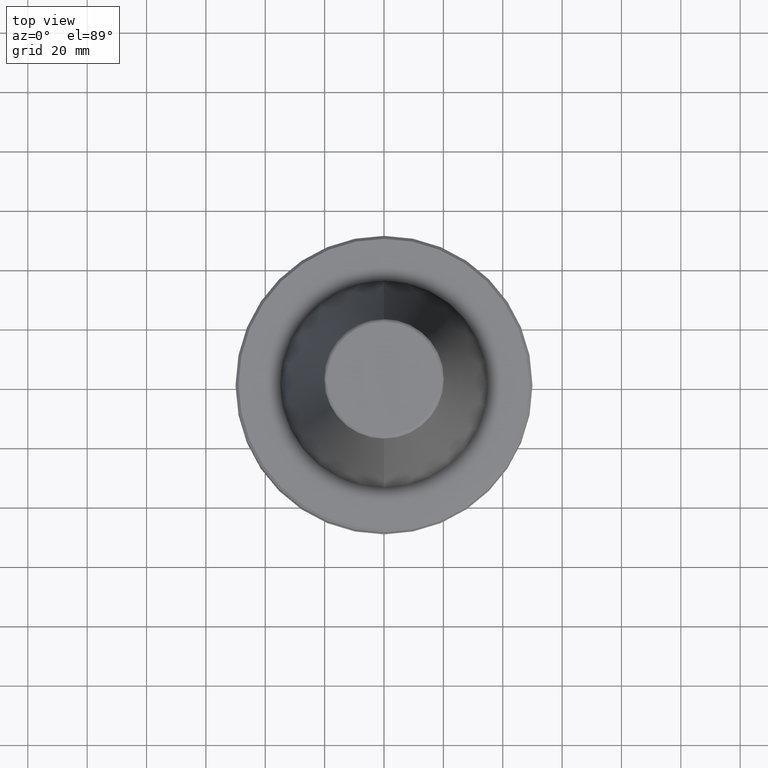
[diagram: clean part render]
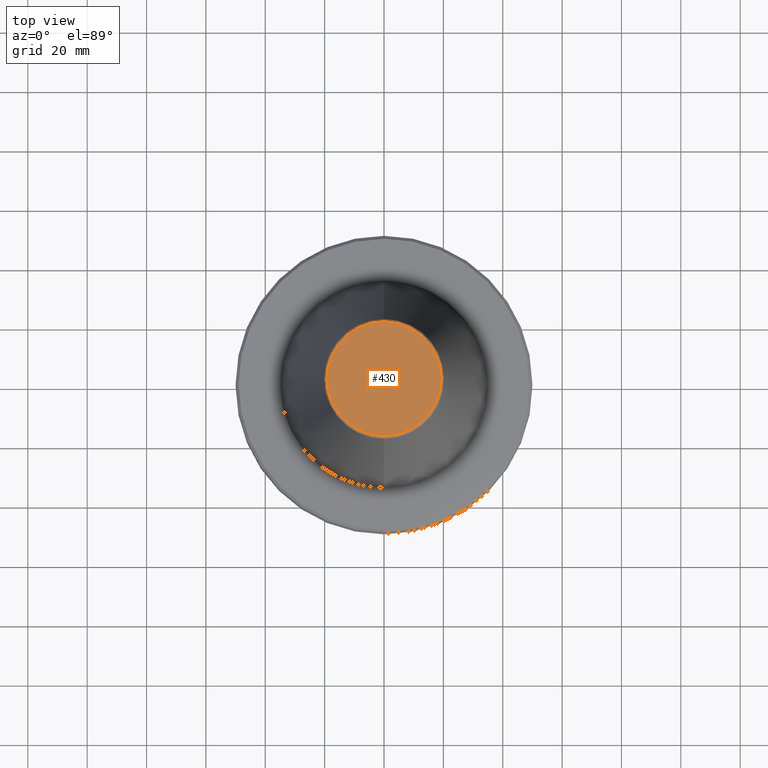
[diagram: same view with one face highlighted and labeled with its STEP entity id]
A machine part, top view. The second image highlights one B-rep face of the part: STEP entity #430.
In plain terms, the highlighted planar face has unit normal (0, 0, -1).
Its self-contained STEP definition (entity closure, byte-faithful):
#85 =( BOUNDED_CURVE ( )  B_SPLINE_CURVE ( 3, ( #365, #1256, #492, #542 ),
 .UNSPECIFIED., .F., .T. ) 
 B_SPLINE_CURVE_WITH_KNOTS ( ( 4, 4 ),
 ( 0.0000000000000000000, 1.000000000000000000 ),
 .UNSPECIFIED. ) 
 CURVE ( )  GEOMETRIC_REPRESENTATION_ITEM ( )  RATIONAL_B_SPLINE_CURVE ( ( 1.000000000000000000, 0.3333333333333333700, 0.3333333333333333700, 1.000000000000000000 ) ) 
 REPRESENTATION_ITEM ( '' )  );
#209 = FACE_OUTER_BOUND ( 'NONE', #510, .T. ) ;
#238 = CARTESIAN_POINT ( 'NONE',  ( -19.21428326503027900, -38.42856653006053600, 101.8000000000000000 ) ) ;
#295 = DIRECTION ( 'NONE',  ( -1.000000000000000000, 0.0000000000000000000, -0.0000000000000000000 ) ) ;
#354 = CARTESIAN_POINT ( 'NONE',  ( -19.21428326503027500, 2.377307613035567900E-015, 101.8000000000000000 ) ) ;
#365 = CARTESIAN_POINT ( 'NONE',  ( -19.21428326503027500, 2.377307613035567900E-015, 101.8000000000000000 ) ) ;
#391 = AXIS2_PLACEMENT_3D ( 'NONE', #418, #550, #295 ) ;
#418 = CARTESIAN_POINT ( 'NONE',  ( 0.0000000000000000000, 0.0000000000000000000, 101.8000000000000000 ) ) ;
#430 = ADVANCED_FACE ( 'NONE', ( #209 ), #950, .F. ) ;
#435 = CARTESIAN_POINT ( 'NONE',  ( 19.21428326503027500, 0.0000000000000000000, 101.8000000000000000 ) ) ;
#441 = VERTEX_POINT ( 'NONE', #435 ) ;
#453 = ORIENTED_EDGE ( 'NONE', *, *, #1365, .F. ) ;
#476 = EDGE_CURVE ( 'NONE', #963, #441, #85, .T. ) ;
#492 = CARTESIAN_POINT ( 'NONE',  ( 19.21428326503027500, 38.42856653006053600, 101.8000000000000000 ) ) ;
#510 = EDGE_LOOP ( 'NONE', ( #453, #1057 ) ) ;
#542 = CARTESIAN_POINT ( 'NONE',  ( 19.21428326503027500, 0.0000000000000000000, 101.8000000000000000 ) ) ;
#550 = DIRECTION ( 'NONE',  ( 0.0000000000000000000, 0.0000000000000000000, -1.000000000000000000 ) ) ;
#554 = CARTESIAN_POINT ( 'NONE',  ( 19.21428326503027500, -38.42856653006053600, 101.8000000000000000 ) ) ;
#737 =( BOUNDED_CURVE ( )  B_SPLINE_CURVE ( 3, ( #1059, #554, #238, #970 ),
 .UNSPECIFIED., .F., .T. ) 
 B_SPLINE_CURVE_WITH_KNOTS ( ( 4, 4 ),
 ( 0.0000000000000000000, 1.000000000000000000 ),
 .UNSPECIFIED. ) 
 CURVE ( )  GEOMETRIC_REPRESENTATION_ITEM ( )  RATIONAL_B_SPLINE_CURVE ( ( 1.000000000000000000, 0.3333333333333333700, 0.3333333333333333700, 1.000000000000000000 ) ) 
 REPRESENTATION_ITEM ( '' )  );
#950 = PLANE ( 'NONE',  #391 ) ;
#963 = VERTEX_POINT ( 'NONE', #354 ) ;
#970 = CARTESIAN_POINT ( 'NONE',  ( -19.21428326503027500, 2.377307613035567900E-015, 101.8000000000000000 ) ) ;
#1057 = ORIENTED_EDGE ( 'NONE', *, *, #476, .F. ) ;
#1059 = CARTESIAN_POINT ( 'NONE',  ( 19.21428326503027500, 0.0000000000000000000, 101.8000000000000000 ) ) ;
#1256 = CARTESIAN_POINT ( 'NONE',  ( -19.21428326503026800, 38.42856653006053600, 101.8000000000000000 ) ) ;
#1365 = EDGE_CURVE ( 'NONE', #441, #963, #737, .T. ) ;